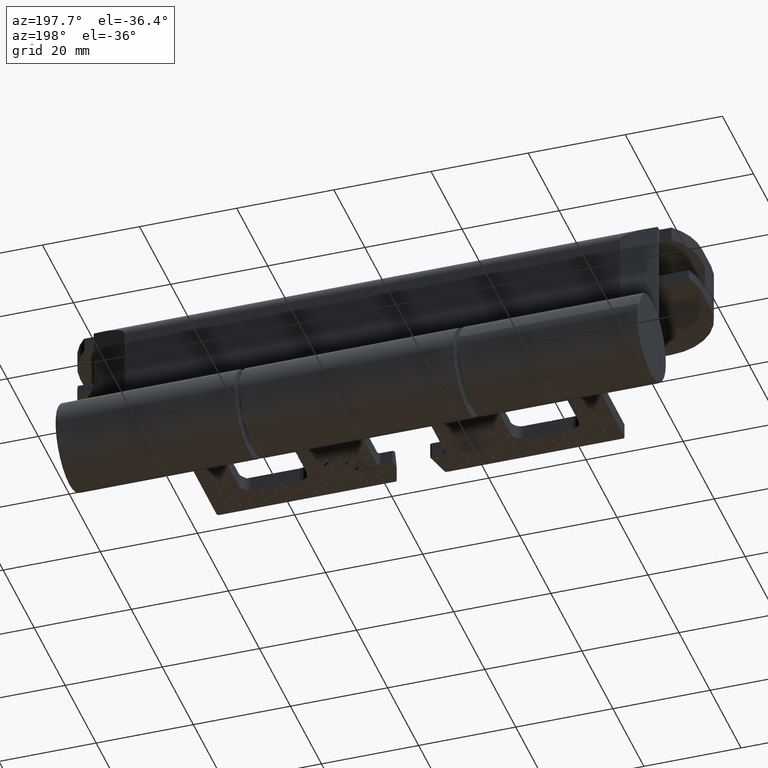
[diagram: clean part render]
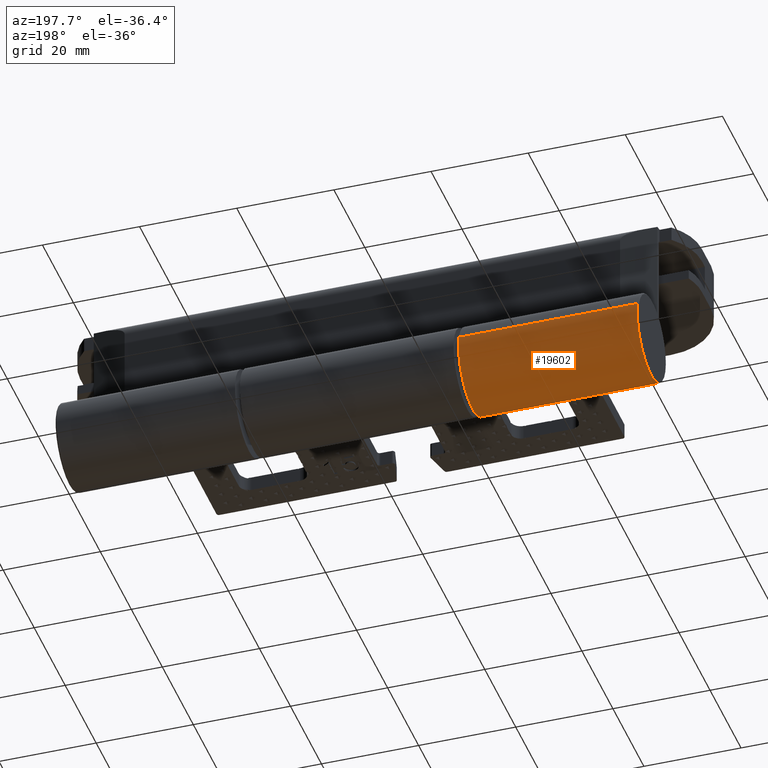
[diagram: same view with one face highlighted and labeled with its STEP entity id]
A machine part, auxiliary view. The second image highlights one B-rep face of the part: STEP entity #19602.
In plain terms, the highlighted cylindrical surface (partial cylindrical patch) has radius 9 mm, axis along (1, 0, 0).
Its self-contained STEP definition (entity closure, byte-faithful):
#3262 = EDGE_CURVE ( 'NONE', #51803, #41332, #13131, .T. ) ;
#3901 = ORIENTED_EDGE ( 'NONE', *, *, #38815, .T. ) ;
#6642 = DIRECTION ( 'NONE',  ( -1.000000000000000000, -2.457646059305949850E-16, -3.214216435727796904E-16 ) ) ;
#8288 = EDGE_CURVE ( 'NONE', #12192, #41332, #24145, .T. ) ;
#9266 = CARTESIAN_POINT ( 'NONE',  ( 25.50000000000000000, 1.758205514101228373E-14, -8.999999999999996447 ) ) ;
#9747 = DIRECTION ( 'NONE',  ( 3.854941057726236618E-16, 3.423875456688418078E-31, 1.000000000000000000 ) ) ;
#12192 = VERTEX_POINT ( 'NONE', #46502 ) ;
#12233 = ORIENTED_EDGE ( 'NONE', *, *, #8288, .F. ) ;
#12935 = CARTESIAN_POINT ( 'NONE',  ( 36.79999999999999716, 1.583712643890505642E-14, -8.999999999999984013 ) ) ;
#13131 = LINE ( 'NONE', #9266, #50269 ) ;
#15317 = CARTESIAN_POINT ( 'NONE',  ( 36.79999999999999716, 1.040834085586084257E-14, 1.387778780781445676E-14 ) ) ;
#16860 = AXIS2_PLACEMENT_3D ( 'NONE', #15317, #23867, #40890 ) ;
#19061 = FACE_OUTER_BOUND ( 'NONE', #52453, .T. ) ;
#19602 = ADVANCED_FACE ( 'NONE', ( #19061 ), #23208, .T. ) ;
#23208 = CYLINDRICAL_SURFACE ( 'NONE', #23324, 9.000000000000003553 ) ;
#23324 = AXIS2_PLACEMENT_3D ( 'NONE', #43813, #35305, #9747 ) ;
#23867 = DIRECTION ( 'NONE',  ( -1.000000000000000000, -2.457646059305949850E-16, -3.214216435727796904E-16 ) ) ;
#24145 = CIRCLE ( 'NONE', #31146, 9.000000000000005329 ) ;
#28159 = ORIENTED_EDGE ( 'NONE', *, *, #3262, .T. ) ;
#29892 = LINE ( 'NONE', #51308, #43446 ) ;
#30169 = DIRECTION ( 'NONE',  ( -1.000000000000000000, -2.457646059305949850E-16, -3.214216435727796904E-16 ) ) ;
#31120 = CARTESIAN_POINT ( 'NONE',  ( 0.000000000000000000, 0.000000000000000000, 0.000000000000000000 ) ) ;
#31146 = AXIS2_PLACEMENT_3D ( 'NONE', #31120, #6642, #53094 ) ;
#33489 = DIRECTION ( 'NONE',  ( -1.000000000000000000, -2.457646059305949850E-16, -3.214216435727796904E-16 ) ) ;
#35305 = DIRECTION ( 'NONE',  ( -1.000000000000000000, -2.457646059305949850E-16, -3.214216435727796904E-16 ) ) ;
#36097 = CARTESIAN_POINT ( 'NONE',  ( 2.892794792155013516E-15, 1.583712643890506273E-14, -9.000000000000000000 ) ) ;
#38815 = EDGE_CURVE ( 'NONE', #48190, #51803, #43193, .T. ) ;
#39189 = ORIENTED_EDGE ( 'NONE', *, *, #44137, .F. ) ;
#40890 = DIRECTION ( 'NONE',  ( 0.000000000000000000, 3.423875456688418078E-31, 1.000000000000000000 ) ) ;
#41332 = VERTEX_POINT ( 'NONE', #36097 ) ;
#42763 = CARTESIAN_POINT ( 'NONE',  ( 36.79999999999999716, 1.040834085586084572E-14, 9.000000000000015987 ) ) ;
#43193 = CIRCLE ( 'NONE', #16860, 9.000000000000003553 ) ;
#43446 = VECTOR ( 'NONE', #30169, 1000.000000000000000 ) ;
#43813 = CARTESIAN_POINT ( 'NONE',  ( 25.50000000000000355, 1.647987302177966740E-14, 6.938893903907228378E-15 ) ) ;
#44137 = EDGE_CURVE ( 'NONE', #48190, #12192, #29892, .T. ) ;
#46502 = CARTESIAN_POINT ( 'NONE',  ( 2.892794792155019038E-15, 2.662405555120914493E-30, 9.000000000000005329 ) ) ;
#48190 = VERTEX_POINT ( 'NONE', #42763 ) ;
#50269 = VECTOR ( 'NONE', #33489, 1000.000000000000000 ) ;
#51308 = CARTESIAN_POINT ( 'NONE',  ( 25.50000000000000355, 1.647987302177967055E-14, 9.000000000000008882 ) ) ;
#51803 = VERTEX_POINT ( 'NONE', #12935 ) ;
#52453 = EDGE_LOOP ( 'NONE', ( #3901, #28159, #12233, #39189 ) ) ;
#53094 = DIRECTION ( 'NONE',  ( 3.214216435727796904E-16, 2.958228394578792081E-31, 1.000000000000000000 ) ) ;